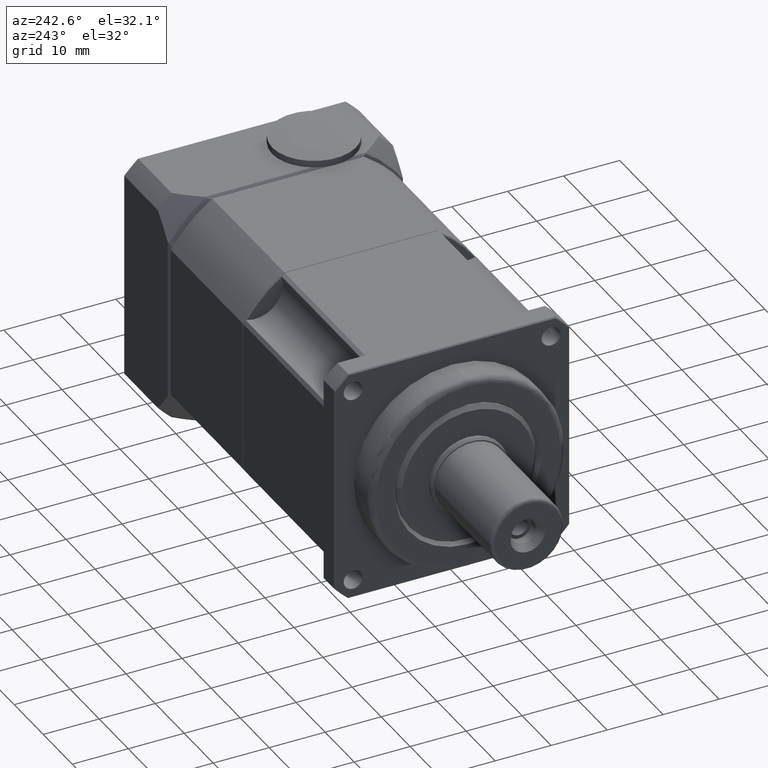
[diagram: clean part render]
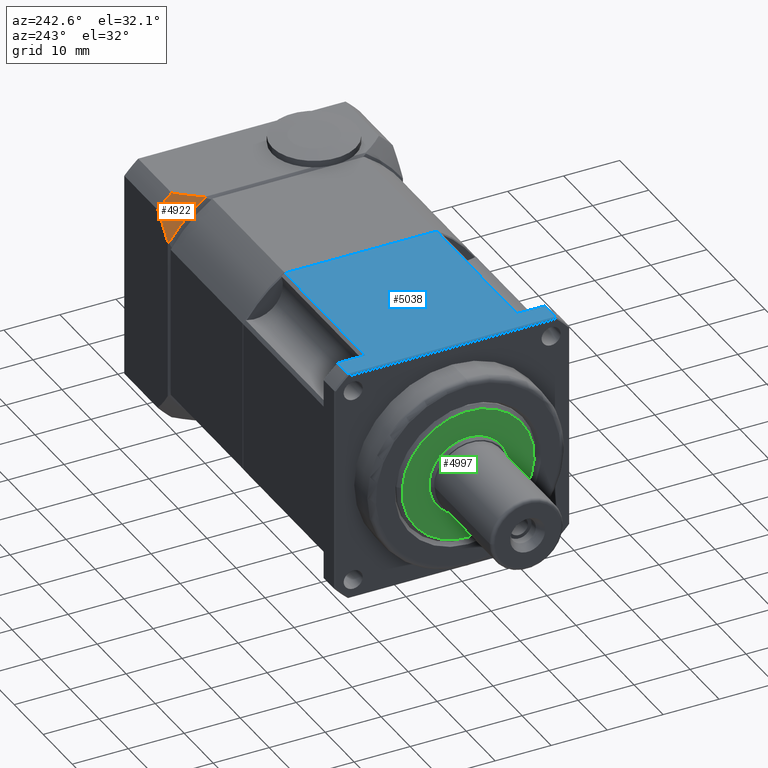
[diagram: same view with three faces highlighted in distinct colors, each labeled with its STEP entity id]
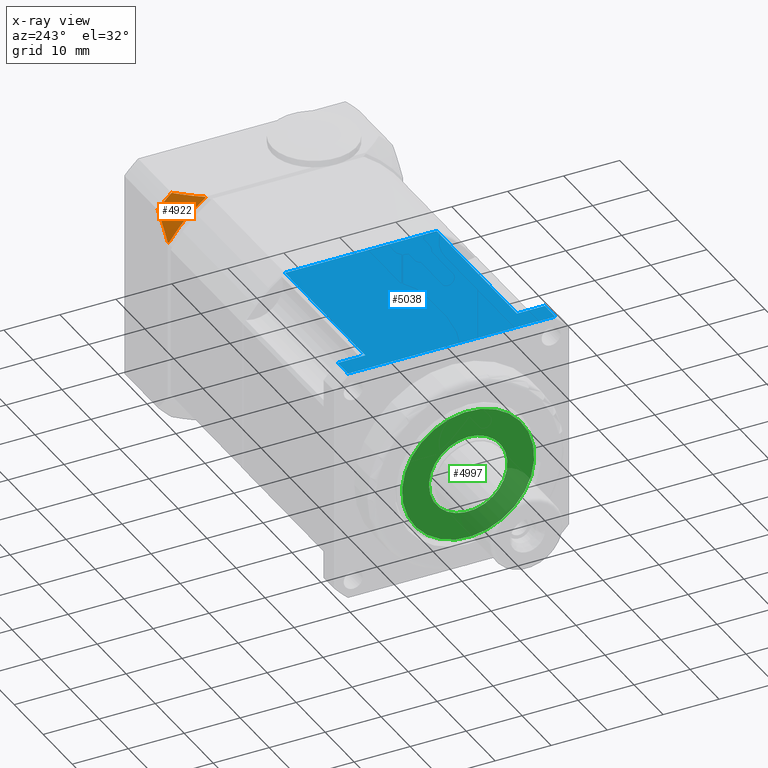
[diagram: x-ray of the same camera — body ghosted, the three highlighted faces saturated]
A machine part, auxiliary view with three faces highlighted in distinct colors.
The next image is the same camera in x-ray (body ghosted, the three faces saturated) — at least one of them is partly hidden behind the body in this view.
Their STEP definitions:

[orange] entity #4922 — the highlighted spherical surface has radius 33.22 mm.
#27=SPHERICAL_SURFACE('',#5408,33.22);
#1135=FACE_OUTER_BOUND('',#1521,.T.);
#1521=EDGE_LOOP('',(#3817,#3818,#3819,#3820,#3821,#3822));
#1913=CIRCLE('',#5365,25.740404037233);
#1923=CIRCLE('',#5377,25.3274587428282);
#1925=CIRCLE('',#5380,14.343921622067);
#1935=CIRCLE('',#5396,14.3439216220669);
#1941=CIRCLE('',#5409,28.);
#1942=CIRCLE('',#5410,25.740404037233);
#2299=VERTEX_POINT('',#8059);
#2300=VERTEX_POINT('',#8061);
#2310=VERTEX_POINT('',#8084);
#2311=VERTEX_POINT('',#8089);
#2324=VERTEX_POINT('',#8157);
#2330=VERTEX_POINT('',#8216);
#2827=EDGE_CURVE('',#2299,#2300,#1913,.T.);
#2839=EDGE_CURVE('',#2310,#2311,#1923,.T.);
#2846=EDGE_CURVE('',#2300,#2310,#1925,.T.);
#2870=EDGE_CURVE('',#2311,#2324,#1935,.T.);
#2878=EDGE_CURVE('',#2330,#2299,#1941,.T.);
#2879=EDGE_CURVE('',#2324,#2330,#1942,.T.);
#3817=ORIENTED_EDGE('',*,*,#2846,.F.);
#3818=ORIENTED_EDGE('',*,*,#2827,.F.);
#3819=ORIENTED_EDGE('',*,*,#2878,.F.);
#3820=ORIENTED_EDGE('',*,*,#2879,.F.);
#3821=ORIENTED_EDGE('',*,*,#2870,.F.);
#3822=ORIENTED_EDGE('',*,*,#2839,.F.);
#4922=ADVANCED_FACE('',(#1135),#27,.T.);
#5365=AXIS2_PLACEMENT_3D('',#8062,#6370,#6371);
#5377=AXIS2_PLACEMENT_3D('',#8090,#6395,#6396);
#5380=AXIS2_PLACEMENT_3D('',#8107,#6404,#6405);
#5396=AXIS2_PLACEMENT_3D('',#8163,#6445,#6446);
#5408=AXIS2_PLACEMENT_3D('',#8215,#6470,#6471);
#5409=AXIS2_PLACEMENT_3D('',#8217,#6472,#6473);
#5410=AXIS2_PLACEMENT_3D('',#8218,#6474,#6475);
#6370=DIRECTION('center_axis',(1.95245496793418E-15,8.18459057141749E-15,
1.));
#6371=DIRECTION('ref_axis',(3.09496634439243E-16,1.,-8.18459057141749E-15));
#6395=DIRECTION('center_axis',(-1.,3.09496634439259E-16,1.95245496793417E-15));
#6396=DIRECTION('ref_axis',(1.95245496793418E-15,8.39606162372704E-15,1.));
#6404=DIRECTION('center_axis',(-0.707106781186545,6.00622666325121E-15,
0.70710678118655));
#6405=DIRECTION('ref_axis',(3.09496634439243E-16,1.,-8.18459057141749E-15));
#6445=DIRECTION('center_axis',(-0.707106781186546,0.707106781186549,-4.48155165405355E-15));
#6446=DIRECTION('ref_axis',(-1.95245496793418E-15,-8.29032609757226E-15,
-1.));
#6470=DIRECTION('center_axis',(-1.92501042198703E-15,-8.34171182861045E-15,
-1.));
#6471=DIRECTION('ref_axis',(1.,-2.13890046887447E-16,-1.92501042198703E-15));
#6472=DIRECTION('center_axis',(1.,-3.09496634439259E-16,-1.95245496793417E-15));
#6473=DIRECTION('ref_axis',(-1.95245496793418E-15,-8.39606162372704E-15,
-1.));
#6474=DIRECTION('center_axis',(3.09496634439243E-16,1.,-8.29032609757226E-15));
#6475=DIRECTION('ref_axis',(-1.95245496793418E-15,-8.29032609757226E-15,
-1.));
#8059=CARTESIAN_POINT('',(22.2145188515627,-20.3472259544601,-6.34775529413343));
#8061=CARTESIAN_POINT('',(18.7159950143863,-24.5260146703452,-6.34775529413339));
#8062=CARTESIAN_POINT('Origin',(40.0909950143863,-38.8674851319123,-6.34775529413332));
#8084=CARTESIAN_POINT('',(18.5947573521735,-24.530210299788,-6.46899295634615));
#8089=CARTESIAN_POINT('',(18.5947573521735,-17.9887227941251,-13.0104804620092));
#8090=CARTESIAN_POINT('Origin',(18.5947573521735,-38.8674851319124,-27.3477552941333));
#8107=CARTESIAN_POINT('Origin',(18.9034950143863,-38.8674851319123,-6.16025529413322));
#8157=CARTESIAN_POINT('',(18.7159950143863,-17.8674851319123,-13.0062848325664));
#8163=CARTESIAN_POINT('Origin',(18.9034950143863,-17.6799851319124,-27.3477552941334));
#8215=CARTESIAN_POINT('Origin',(40.0909950143862,-38.8674851319124,-27.3477552941333));
#8216=CARTESIAN_POINT('',(22.2145188515627,-17.8674851319123,-8.82749611668133));
#8217=CARTESIAN_POINT('Origin',(22.2145188515627,-38.8674851319124,-27.3477552941333));
#8218=CARTESIAN_POINT('Origin',(40.0909950143862,-17.8674851319124,-27.3477552941335));

[blue] entity #5038 — the highlighted planar face has unit normal (0, 0, 1).
#381=LINE('',#8531,#615);
#391=LINE('',#8669,#625);
#396=LINE('',#8720,#630);
#404=LINE('',#8794,#638);
#407=LINE('',#8806,#641);
#408=LINE('',#8808,#642);
#409=LINE('',#8809,#643);
#410=LINE('',#8810,#644);
#615=VECTOR('',#6779,27.1293199325011);
#625=VECTOR('',#6921,4.95559921120161);
#630=VECTOR('',#6958,4.95559921120161);
#638=VECTOR('',#7004,37.0405183549043);
#641=VECTOR('',#7015,3.6);
#642=VECTOR('',#7018,27.7);
#643=VECTOR('',#7019,27.7);
#644=VECTOR('',#7020,3.6);
#823=PLANE('',#5655);
#1251=FACE_OUTER_BOUND('',#1691,.T.);
#1691=EDGE_LOOP('',(#4212,#4213,#4214,#4215,#4216,#4217,#4218,#4219));
#2401=VERTEX_POINT('',#8528);
#2402=VERTEX_POINT('',#8530);
#2447=VERTEX_POINT('',#8666);
#2448=VERTEX_POINT('',#8668);
#2461=VERTEX_POINT('',#8712);
#2462=VERTEX_POINT('',#8719);
#2479=VERTEX_POINT('',#8784);
#2481=VERTEX_POINT('',#8793);
#2990=EDGE_CURVE('',#2401,#2402,#381,.T.);
#3042=EDGE_CURVE('',#2447,#2448,#391,.T.);
#3061=EDGE_CURVE('',#2461,#2462,#396,.T.);
#3087=EDGE_CURVE('',#2481,#2479,#404,.T.);
#3093=EDGE_CURVE('',#2461,#2479,#407,.T.);
#3094=EDGE_CURVE('',#2447,#2402,#408,.T.);
#3095=EDGE_CURVE('',#2401,#2462,#409,.T.);
#3096=EDGE_CURVE('',#2481,#2448,#410,.T.);
#4212=ORIENTED_EDGE('',*,*,#3094,.T.);
#4213=ORIENTED_EDGE('',*,*,#2990,.F.);
#4214=ORIENTED_EDGE('',*,*,#3095,.T.);
#4215=ORIENTED_EDGE('',*,*,#3061,.F.);
#4216=ORIENTED_EDGE('',*,*,#3093,.T.);
#4217=ORIENTED_EDGE('',*,*,#3087,.F.);
#4218=ORIENTED_EDGE('',*,*,#3096,.T.);
#4219=ORIENTED_EDGE('',*,*,#3042,.F.);
#5038=ADVANCED_FACE('',(#1251),#823,.T.);
#5655=AXIS2_PLACEMENT_3D('',#8807,#7016,#7017);
#6779=DIRECTION('',(-4.44089209850037E-16,-1.,9.43516098583778E-15));
#6921=DIRECTION('',(-4.44089209850037E-16,-1.,9.43516098583778E-15));
#6958=DIRECTION('',(-4.44089209850037E-16,-1.,9.43516098583778E-15));
#7004=DIRECTION('',(4.44089209850037E-16,1.,-9.43516098583778E-15));
#7015=DIRECTION('',(-1.,4.44089209850051E-16,1.50008167835232E-15));
#7016=DIRECTION('center_axis',(1.50008167835233E-15,9.43516098583778E-15,
1.));
#7017=DIRECTION('ref_axis',(4.44089209850063E-16,1.,-9.41469124882133E-15));
#7018=DIRECTION('',(1.,-4.44089209850051E-16,-1.50008167835232E-15));
#7019=DIRECTION('',(-1.,4.44089209850051E-16,1.50008167835232E-15));
#7020=DIRECTION('',(1.,-4.44089209850051E-16,-1.50008167835232E-15));
#8528=CARTESIAN_POINT('',(-7.28400498561355,-25.3028251656617,-6.34775529413336));
#8530=CARTESIAN_POINT('',(-7.28400498561357,-52.4321450981628,-6.3477552941331));
#8531=CARTESIAN_POINT('',(-7.28400498561355,-17.8674851319123,-6.34775529413343));
#8666=CARTESIAN_POINT('',(-34.9840049856136,-52.4321450981628,-6.34775529413306));
#8668=CARTESIAN_POINT('',(-34.9840049856136,-57.3877443093644,-6.34775529413301));
#8669=CARTESIAN_POINT('',(-34.9840049856136,-49.3674851319122,-6.34775529413309));
#8712=CARTESIAN_POINT('',(-34.9840049856136,-20.3472259544601,-6.34775529413336));
#8719=CARTESIAN_POINT('',(-34.9840049856136,-25.3028251656617,-6.34775529413331));
#8720=CARTESIAN_POINT('',(-34.9840049856136,-49.3674851319122,-6.34775529413309));
#8784=CARTESIAN_POINT('',(-38.5840049856136,-20.3472259544601,-6.34775529413336));
#8793=CARTESIAN_POINT('',(-38.5840049856136,-57.3877443093644,-6.34775529413301));
#8794=CARTESIAN_POINT('',(-38.5840049856136,-49.3674851319122,-6.34775529413308));
#8806=CARTESIAN_POINT('',(-7.28400498561355,-20.3472259544601,-6.3477552941334));
#8807=CARTESIAN_POINT('Origin',(-7.28400498561357,-59.8674851319122,-6.34775529413303));
#8808=CARTESIAN_POINT('',(-7.28400498561357,-52.4321450981628,-6.3477552941331));
#8809=CARTESIAN_POINT('',(-7.28400498561355,-25.3028251656617,-6.34775529413336));
#8810=CARTESIAN_POINT('',(-7.28400498561357,-57.3877443093644,-6.34775529413306));

[green] entity #4997 — the highlighted planar face has unit normal (-1, -0, 0).
#802=PLANE('',#5559);
#939=FACE_BOUND('',#1632,.T.);
#1210=FACE_OUTER_BOUND('',#1631,.T.);
#1631=EDGE_LOOP('',(#4069));
#1632=EDGE_LOOP('',(#4070));
#2012=CIRCLE('',#5558,11.8);
#2013=CIRCLE('',#5560,6.99999999999999);
#2407=VERTEX_POINT('',#8544);
#2408=VERTEX_POINT('',#8547);
#2996=EDGE_CURVE('',#2407,#2407,#2012,.T.);
#2997=EDGE_CURVE('',#2408,#2408,#2013,.T.);
#4069=ORIENTED_EDGE('',*,*,#2996,.F.);
#4070=ORIENTED_EDGE('',*,*,#2997,.F.);
#4997=ADVANCED_FACE('',(#1210,#939),#802,.T.);
#5558=AXIS2_PLACEMENT_3D('',#8545,#6796,#6797);
#5559=AXIS2_PLACEMENT_3D('',#8546,#6798,#6799);
#5560=AXIS2_PLACEMENT_3D('',#8548,#6800,#6801);
#6796=DIRECTION('center_axis',(1.,4.17746143278716E-17,-1.91716389710548E-15));
#6797=DIRECTION('ref_axis',(-8.27783148128878E-17,-0.997890386208803,-0.0649213147744789));
#6798=DIRECTION('center_axis',(-1.,-4.17746143278716E-17,1.91716389710548E-15));
#6799=DIRECTION('ref_axis',(2.1316282072803E-15,-0.0649213147744789,0.997890386208803));
#6800=DIRECTION('center_axis',(-1.,-4.17746143278716E-17,1.91716389710548E-15));
#6801=DIRECTION('ref_axis',(-6.39149226839442E-30,1.,5.55111512312658E-17));
#8544=CARTESIAN_POINT('',(-44.2840049856135,-27.0923785746486,-26.5816837797943));
#8545=CARTESIAN_POINT('Origin',(-44.2840049856135,-38.8674851319124,-27.3477552941332));
#8546=CARTESIAN_POINT('Origin',(-44.2840049856135,-26.3938553043024,-26.5362388594522));
#8547=CARTESIAN_POINT('',(-44.2840049856135,-31.8822524284508,-26.8933060907118));
#8548=CARTESIAN_POINT('Origin',(-44.2840049856135,-38.8674851319124,-27.3477552941332));